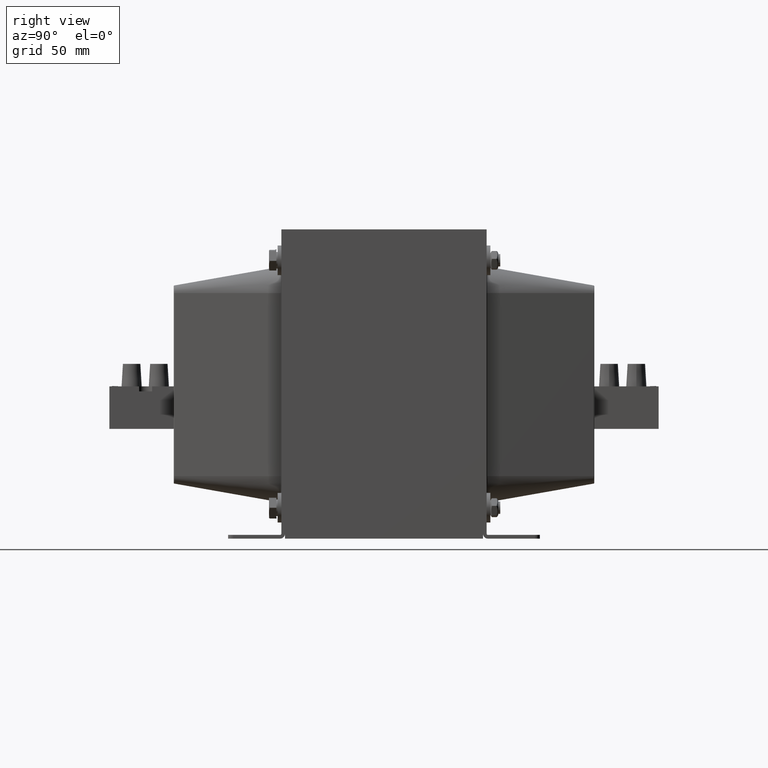
[diagram: clean part render]
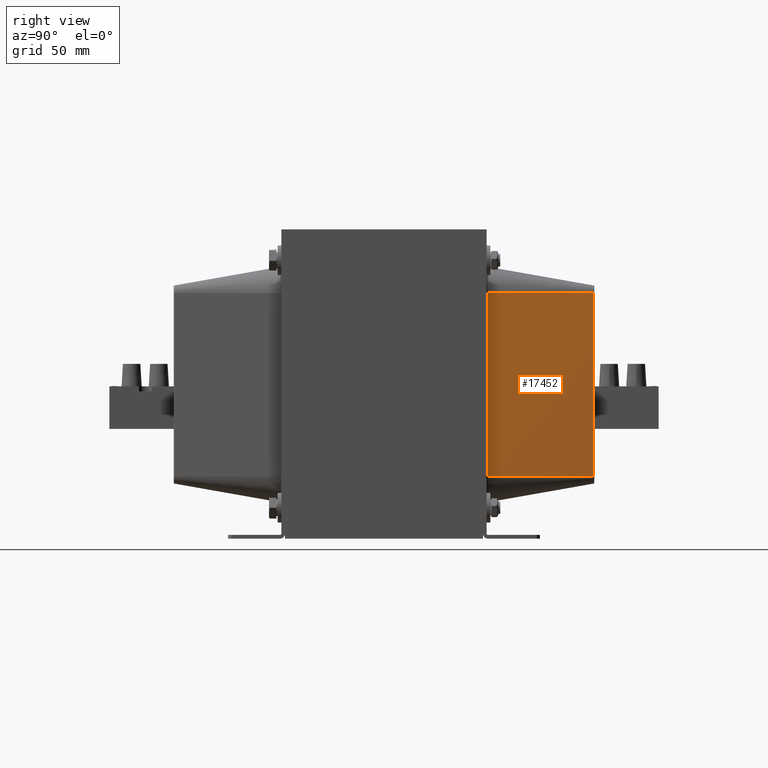
[diagram: same view with one face highlighted and labeled with its STEP entity id]
A machine part, right view. The second image highlights one B-rep face of the part: STEP entity #17452.
In plain terms, the highlighted planar face has unit normal (0.9848, 0.1736, -0).
Its self-contained STEP definition (entity closure, byte-faithful):
#1587=PLANE('',#19170);
#3342=LINE('',#39853,#5148);
#3345=LINE('',#39860,#5151);
#3352=LINE('',#39892,#5158);
#3360=LINE('',#39920,#5166);
#5148=VECTOR('',#23217,10.);
#5151=VECTOR('',#23224,10.);
#5158=VECTOR('',#23263,10.);
#5166=VECTOR('',#23299,10.);
#6249=FACE_OUTER_BOUND('',#7338,.T.);
#7338=EDGE_LOOP('',(#16308,#16309,#16310,#16311));
#9226=VERTEX_POINT('',#39841);
#9229=VERTEX_POINT('',#39848);
#9231=VERTEX_POINT('',#39858);
#9240=VERTEX_POINT('',#39890);
#11583=EDGE_CURVE('',#9226,#9229,#3342,.T.);
#11587=EDGE_CURVE('',#9226,#9231,#3345,.T.);
#11602=EDGE_CURVE('',#9240,#9231,#3352,.T.);
#11617=EDGE_CURVE('',#9229,#9240,#3360,.T.);
#16308=ORIENTED_EDGE('',*,*,#11583,.F.);
#16309=ORIENTED_EDGE('',*,*,#11587,.T.);
#16310=ORIENTED_EDGE('',*,*,#11602,.F.);
#16311=ORIENTED_EDGE('',*,*,#11617,.F.);
#17452=ADVANCED_FACE('',(#6249),#1587,.T.);
#19170=AXIS2_PLACEMENT_3D('',#39919,#23297,#23298);
#23217=DIRECTION('',(1.,-7.46724607323553E-32,-2.40360039970807E-16));
#23224=DIRECTION('',(0.,-0.984807753012208,0.17364817766693));
#23263=DIRECTION('',(-1.,0.,2.40360039970807E-16));
#23297=DIRECTION('center_axis',(2.36708430877575E-16,0.173648177666931,
0.984807753012208));
#23298=DIRECTION('ref_axis',(-1.,7.46724607323553E-32,2.40360039970807E-16));
#23299=DIRECTION('',(0.,-0.984807753012208,0.17364817766693));
#39841=CARTESIAN_POINT('',(-99.2386601712335,44.6851599556911,127.414428139669));
#39848=CARTESIAN_POINT('',(-25.3346601712335,44.6851599556911,127.414428139669));
#39853=CARTESIAN_POINT('',(-80.7626601712335,44.6851599556911,127.414428139669));
#39858=CARTESIAN_POINT('',(-99.2386601712335,1.81484004430891,134.973622211649));
#39860=CARTESIAN_POINT('',(-99.2386601712335,45.,127.35891334525));
#39890=CARTESIAN_POINT('',(-25.3346601712335,1.81484004430891,134.973622211649));
#39892=CARTESIAN_POINT('',(-80.8693300856167,1.8148400443089,134.973622211649));
#39919=CARTESIAN_POINT('Origin',(-99.2386601712335,45.,127.35891334525));
#39920=CARTESIAN_POINT('',(-25.3346601712335,45.,127.35891334525));